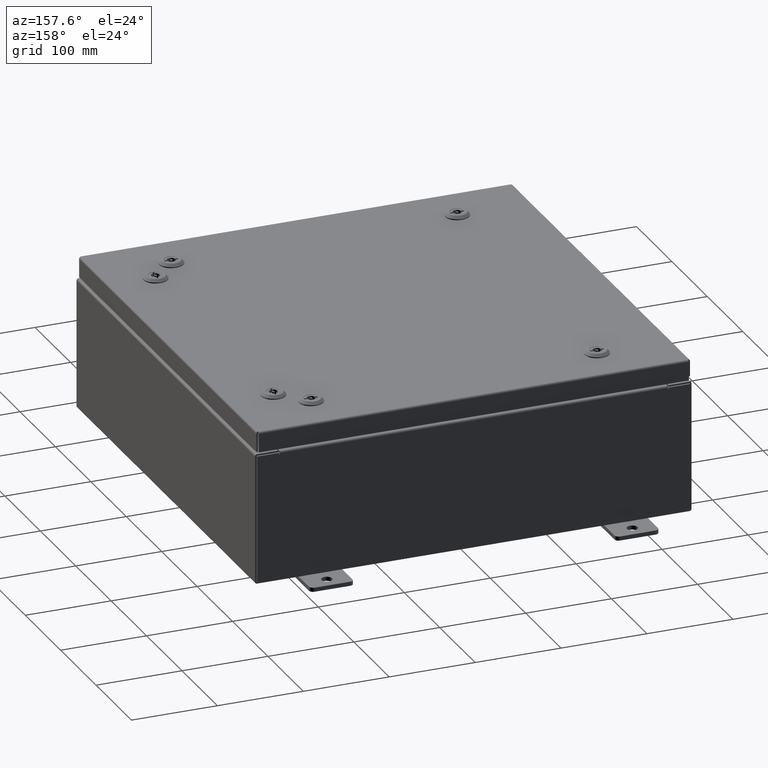
[diagram: clean part render]
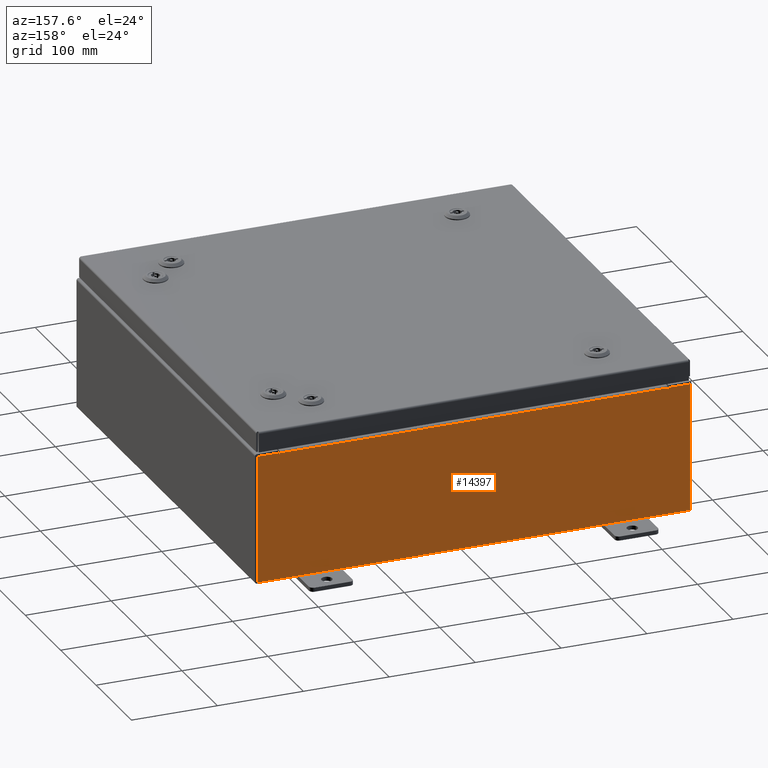
[diagram: same view with one face highlighted and labeled with its STEP entity id]
A machine part, auxiliary view. The second image highlights one B-rep face of the part: STEP entity #14397.
In plain terms, the highlighted planar face has unit normal (0, -1, 0).
Its self-contained STEP definition (entity closure, byte-faithful):
#284 = VECTOR ( 'NONE', #19709, 39.37007874015748100 ) ;
#2038 = DIRECTION ( 'NONE',  ( 1.000000000000000000, 0.0000000000000000000, 0.0000000000000000000 ) ) ;
#2366 = LINE ( 'NONE', #17506, #41734 ) ;
#2398 = VECTOR ( 'NONE', #42964, 39.37007874015748100 ) ;
#2938 = DIRECTION ( 'NONE',  ( 0.0000000000000000000, 0.0000000000000000000, -1.000000000000000000 ) ) ;
#3947 = LINE ( 'NONE', #23098, #2398 ) ;
#4015 = DIRECTION ( 'NONE',  ( 1.000000000000000000, 0.0000000000000000000, 0.0000000000000000000 ) ) ;
#4828 = CARTESIAN_POINT ( 'NONE',  ( -9.925300000000000000, 0.0000000000000000000, 2.925300000000000500 ) ) ;
#5293 = CARTESIAN_POINT ( 'NONE',  ( 8.887200000000000000, 0.0000000000000000000, 2.912300000000000600 ) ) ;
#5671 = CARTESIAN_POINT ( 'NONE',  ( -8.887200000000000000, -0.0000000000000000000, 0.0000000000000000000 ) ) ;
#6189 = ORIENTED_EDGE ( 'NONE', *, *, #20122, .F. ) ;
#6846 = CARTESIAN_POINT ( 'NONE',  ( 0.0000000000000000000, 0.0000000000000000000, 0.0000000000000000000 ) ) ;
#7506 = DIRECTION ( 'NONE',  ( 0.0000000000000000000, 0.0000000000000000000, -1.000000000000000000 ) ) ;
#8189 = EDGE_LOOP ( 'NONE', ( #33318, #16210, #40903, #17010, #33906, #6189, #43925, #17806, #42464, #31621, #18532, #34728 ) ) ;
#9134 = EDGE_CURVE ( 'NONE', #26477, #26775, #23795, .T. ) ;
#9771 = EDGE_CURVE ( 'NONE', #50893, #33706, #19978, .T. ) ;
#9974 = EDGE_CURVE ( 'NONE', #10426, #33375, #40021, .T. ) ;
#10426 = VERTEX_POINT ( 'NONE', #59983 ) ;
#11161 = AXIS2_PLACEMENT_3D ( 'NONE', #6846, #26617, #60795 ) ;
#12436 = CARTESIAN_POINT ( 'NONE',  ( -9.925300000000000000, 0.0000000000000000000, 2.925300000000000500 ) ) ;
#13011 = CIRCLE ( 'NONE', #19126, 0.01867500000000003900 ) ;
#13318 = VECTOR ( 'NONE', #7506, 39.37007874015748100 ) ;
#13444 = LINE ( 'NONE', #4828, #284 ) ;
#13779 = EDGE_CURVE ( 'NONE', #29562, #53346, #49050, .T. ) ;
#14397 = ADVANCED_FACE ( 'NONE', ( #48250 ), #46293, .F. ) ;
#14580 = CARTESIAN_POINT ( 'NONE',  ( -8.924549999999998200, 0.0000000000000000000, 2.874950000000000600 ) ) ;
#14736 = VECTOR ( 'NONE', #25419, 39.37007874015748100 ) ;
#16210 = ORIENTED_EDGE ( 'NONE', *, *, #9771, .F. ) ;
#16294 = LINE ( 'NONE', #5671, #14736 ) ;
#17010 = ORIENTED_EDGE ( 'NONE', *, *, #13779, .T. ) ;
#17506 = CARTESIAN_POINT ( 'NONE',  ( -8.924550000000000000, -0.0000000000000000000, 0.0000000000000000000 ) ) ;
#17806 = ORIENTED_EDGE ( 'NONE', *, *, #25216, .T. ) ;
#18532 = ORIENTED_EDGE ( 'NONE', *, *, #31095, .T. ) ;
#18744 = LINE ( 'NONE', #28127, #25619 ) ;
#19126 = AXIS2_PLACEMENT_3D ( 'NONE', #61637, #32464, #2938 ) ;
#19709 = DIRECTION ( 'NONE',  ( 1.000000000000000000, 0.0000000000000000000, 0.0000000000000000000 ) ) ;
#19978 = CIRCLE ( 'NONE', #61729, 0.01867500000000003900 ) ;
#20122 = EDGE_CURVE ( 'NONE', #26775, #41385, #13011, .T. ) ;
#20771 = CARTESIAN_POINT ( 'NONE',  ( -8.924550000000000000, 0.0000000000000000000, 2.925300000000000500 ) ) ;
#21298 = VECTOR ( 'NONE', #2038, 39.37007874015748100 ) ;
#23098 = CARTESIAN_POINT ( 'NONE',  ( -9.925300000000000000, 0.0000000000000000000, 2.925300000000000500 ) ) ;
#23333 = VECTOR ( 'NONE', #4015, 39.37007874015748100 ) ;
#23795 = LINE ( 'NONE', #45085, #62823 ) ;
#25216 = EDGE_CURVE ( 'NONE', #26477, #47507, #13444, .T. ) ;
#25419 = DIRECTION ( 'NONE',  ( 0.0000000000000000000, 0.0000000000000000000, -1.000000000000000000 ) ) ;
#25619 = VECTOR ( 'NONE', #47794, 39.37007874015748100 ) ;
#26477 = VERTEX_POINT ( 'NONE', #55675 ) ;
#26617 = DIRECTION ( 'NONE',  ( 0.0000000000000000000, -1.000000000000000000, 0.0000000000000000000 ) ) ;
#26775 = VERTEX_POINT ( 'NONE', #28368 ) ;
#27439 = EDGE_CURVE ( 'NONE', #47507, #10426, #49523, .T. ) ;
#28064 = CARTESIAN_POINT ( 'NONE',  ( -8.887200000000000000, 1.024442997624098700E-016, 2.912300000000000600 ) ) ;
#28127 = CARTESIAN_POINT ( 'NONE',  ( 8.887200000000000000, 0.0000000000000000000, 0.0000000000000000000 ) ) ;
#28368 = CARTESIAN_POINT ( 'NONE',  ( 8.924550000000000000, 0.0000000000000000000, 2.874950000000000600 ) ) ;
#29562 = VERTEX_POINT ( 'NONE', #28064 ) ;
#31095 = EDGE_CURVE ( 'NONE', #33375, #63373, #3947, .T. ) ;
#31499 = EDGE_CURVE ( 'NONE', #29562, #50893, #16294, .T. ) ;
#31540 = VECTOR ( 'NONE', #41746, 39.37007874015748100 ) ;
#31542 = CARTESIAN_POINT ( 'NONE',  ( -8.887200000000000000, 1.024442997624098700E-016, 2.912300000000000600 ) ) ;
#31621 = ORIENTED_EDGE ( 'NONE', *, *, #9974, .T. ) ;
#32028 = CARTESIAN_POINT ( 'NONE',  ( 9.925300000000000000, 0.0000000000000000000, 2.925300000000000500 ) ) ;
#32464 = DIRECTION ( 'NONE',  ( -0.0000000000000000000, 1.000000000000000000, -0.0000000000000000000 ) ) ;
#33318 = ORIENTED_EDGE ( 'NONE', *, *, #58373, .F. ) ;
#33375 = VERTEX_POINT ( 'NONE', #49757 ) ;
#33706 = VERTEX_POINT ( 'NONE', #14580 ) ;
#33906 = ORIENTED_EDGE ( 'NONE', *, *, #42883, .F. ) ;
#34728 = ORIENTED_EDGE ( 'NONE', *, *, #54501, .T. ) ;
#40021 = LINE ( 'NONE', #42290, #31540 ) ;
#40903 = ORIENTED_EDGE ( 'NONE', *, *, #31499, .F. ) ;
#41385 = VERTEX_POINT ( 'NONE', #60311 ) ;
#41734 = VECTOR ( 'NONE', #51913, 39.37007874015748100 ) ;
#41746 = DIRECTION ( 'NONE',  ( -1.000000000000000000, -0.0000000000000000000, -0.0000000000000000000 ) ) ;
#42290 = CARTESIAN_POINT ( 'NONE',  ( -9.925300000000000000, 0.0000000000000000000, -2.925299999999999600 ) ) ;
#42464 = ORIENTED_EDGE ( 'NONE', *, *, #27439, .T. ) ;
#42883 = EDGE_CURVE ( 'NONE', #41385, #53346, #18744, .T. ) ;
#42964 = DIRECTION ( 'NONE',  ( -0.0000000000000000000, -0.0000000000000000000, 1.000000000000000000 ) ) ;
#43135 = CARTESIAN_POINT ( 'NONE',  ( 9.925300000000000000, 0.0000000000000000000, 2.925300000000000500 ) ) ;
#43925 = ORIENTED_EDGE ( 'NONE', *, *, #9134, .F. ) ;
#44373 = DIRECTION ( 'NONE',  ( -4.340572780400004900E-014, 0.0000000000000000000, -1.000000000000000000 ) ) ;
#45085 = CARTESIAN_POINT ( 'NONE',  ( 8.924549999999875600, -0.0000000000000000000, -3.873765880731832600E-013 ) ) ;
#46293 = PLANE ( 'NONE',  #11161 ) ;
#47507 = VERTEX_POINT ( 'NONE', #43135 ) ;
#47794 = DIRECTION ( 'NONE',  ( 0.0000000000000000000, 0.0000000000000000000, 1.000000000000000000 ) ) ;
#48250 = FACE_OUTER_BOUND ( 'NONE', #8189, .T. ) ;
#49050 = LINE ( 'NONE', #31542, #21298 ) ;
#49523 = LINE ( 'NONE', #32028, #13318 ) ;
#49637 = DIRECTION ( 'NONE',  ( 0.0000000000000000000, 0.0000000000000000000, -1.000000000000000000 ) ) ;
#49757 = CARTESIAN_POINT ( 'NONE',  ( -9.925300000000000000, 0.0000000000000000000, -2.925299999999999600 ) ) ;
#49798 = DIRECTION ( 'NONE',  ( -0.0000000000000000000, 1.000000000000000000, -0.0000000000000000000 ) ) ;
#49852 = CARTESIAN_POINT ( 'NONE',  ( -8.905874999999998200, 0.0000000000000000000, 2.874950000000000600 ) ) ;
#50893 = VERTEX_POINT ( 'NONE', #57490 ) ;
#51913 = DIRECTION ( 'NONE',  ( 0.0000000000000000000, 0.0000000000000000000, 1.000000000000000000 ) ) ;
#52649 = LINE ( 'NONE', #53254, #23333 ) ;
#53254 = CARTESIAN_POINT ( 'NONE',  ( -9.925300000000000000, 0.0000000000000000000, 2.925300000000000500 ) ) ;
#53346 = VERTEX_POINT ( 'NONE', #5293 ) ;
#54501 = EDGE_CURVE ( 'NONE', #63373, #56419, #52649, .T. ) ;
#55675 = CARTESIAN_POINT ( 'NONE',  ( 8.924550000000000000, 0.0000000000000000000, 2.925300000000000500 ) ) ;
#56419 = VERTEX_POINT ( 'NONE', #20771 ) ;
#57490 = CARTESIAN_POINT ( 'NONE',  ( -8.887200000000000000, -0.0000000000000000000, 2.874950000000000600 ) ) ;
#58373 = EDGE_CURVE ( 'NONE', #33706, #56419, #2366, .T. ) ;
#59983 = CARTESIAN_POINT ( 'NONE',  ( 9.925300000000000000, 0.0000000000000000000, -2.925299999999999600 ) ) ;
#60311 = CARTESIAN_POINT ( 'NONE',  ( 8.887200000000000000, 0.0000000000000000000, 2.874950000000000600 ) ) ;
#60795 = DIRECTION ( 'NONE',  ( 0.0000000000000000000, -0.0000000000000000000, -1.000000000000000000 ) ) ;
#61637 = CARTESIAN_POINT ( 'NONE',  ( 8.905875000000000000, 0.0000000000000000000, 2.874950000000000600 ) ) ;
#61729 = AXIS2_PLACEMENT_3D ( 'NONE', #49852, #49798, #49637 ) ;
#62823 = VECTOR ( 'NONE', #44373, 39.37007874015748100 ) ;
#63373 = VERTEX_POINT ( 'NONE', #12436 ) ;